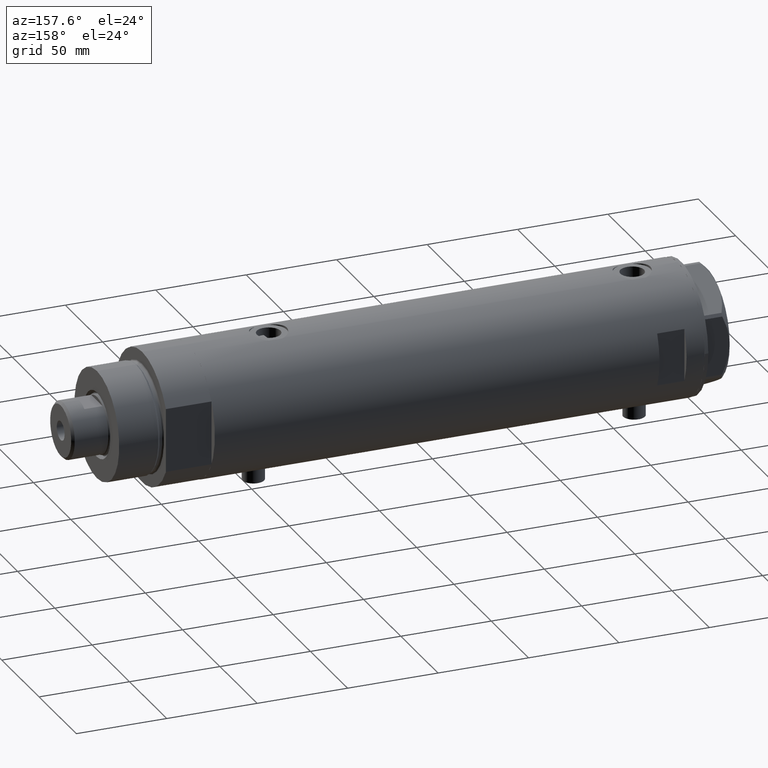
[diagram: clean part render]
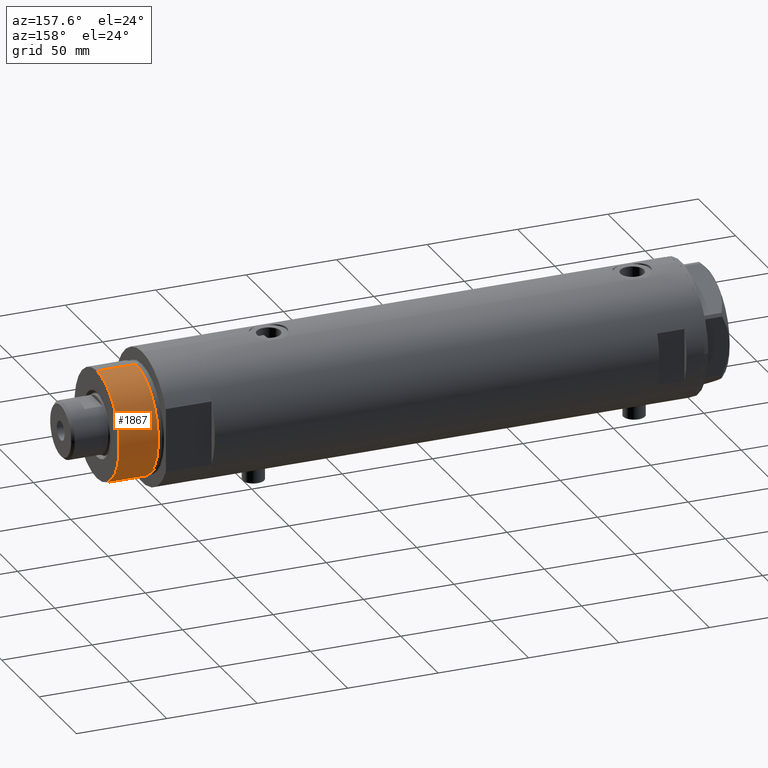
[diagram: same view with one face highlighted and labeled with its STEP entity id]
A machine part, auxiliary view. The second image highlights one B-rep face of the part: STEP entity #1867.
In plain terms, the highlighted cylindrical surface (partial cylindrical patch) has radius 30 mm, axis along (-1, -0, 0).
Its self-contained STEP definition (entity closure, byte-faithful):
#71 = DIRECTION ( 'NONE',  ( 1.000000000000000000, 0.000000000000000000, 0.000000000000000000 ) ) ;
#85 = VECTOR ( 'NONE', #1343, 1000.000000000000000 ) ;
#87 = VERTEX_POINT ( 'NONE', #4328 ) ;
#114 = CARTESIAN_POINT ( 'NONE',  ( -30.00000000000000000, 0.000000000000000000, 50.19999999999999574 ) ) ;
#367 = DIRECTION ( 'NONE',  ( -1.000000000000000000, 0.000000000000000000, 0.000000000000000000 ) ) ;
#392 = DIRECTION ( 'NONE',  ( 0.000000000000000000, 0.000000000000000000, 1.000000000000000000 ) ) ;
#399 = FACE_OUTER_BOUND ( 'NONE', #1698, .T. ) ;
#590 = AXIS2_PLACEMENT_3D ( 'NONE', #3412, #3324, #1202 ) ;
#619 = ORIENTED_EDGE ( 'NONE', *, *, #1191, .F. ) ;
#948 = AXIS2_PLACEMENT_3D ( 'NONE', #3949, #392, #71 ) ;
#986 = ORIENTED_EDGE ( 'NONE', *, *, #2713, .T. ) ;
#1032 = CARTESIAN_POINT ( 'NONE',  ( -30.00000000000000000, 0.000000000000000000, 50.19999999999999574 ) ) ;
#1033 = ORIENTED_EDGE ( 'NONE', *, *, #3898, .F. ) ;
#1191 = EDGE_CURVE ( 'NONE', #1997, #1330, #3225, .T. ) ;
#1202 = DIRECTION ( 'NONE',  ( 1.000000000000000000, 0.000000000000000000, 0.000000000000000000 ) ) ;
#1212 = AXIS2_PLACEMENT_3D ( 'NONE', #4199, #3586, #367 ) ;
#1245 = CARTESIAN_POINT ( 'NONE',  ( -30.00000000000000000, 0.000000000000000000, 28.57384048104054486 ) ) ;
#1330 = VERTEX_POINT ( 'NONE', #1245 ) ;
#1343 = DIRECTION ( 'NONE',  ( -0.000000000000000000, -0.000000000000000000, -1.000000000000000000 ) ) ;
#1352 = VECTOR ( 'NONE', #2156, 1000.000000000000000 ) ;
#1698 = EDGE_LOOP ( 'NONE', ( #1033, #2133, #986, #619 ) ) ;
#1867 = ADVANCED_FACE ( 'NONE', ( #399 ), #3561, .T. ) ;
#1963 = CIRCLE ( 'NONE', #948, 30.00000000000000000 ) ;
#1997 = VERTEX_POINT ( 'NONE', #1032 ) ;
#2133 = ORIENTED_EDGE ( 'NONE', *, *, #2263, .T. ) ;
#2156 = DIRECTION ( 'NONE',  ( -0.000000000000000000, -0.000000000000000000, -1.000000000000000000 ) ) ;
#2263 = EDGE_CURVE ( 'NONE', #87, #2377, #2717, .T. ) ;
#2377 = VERTEX_POINT ( 'NONE', #3977 ) ;
#2554 = CIRCLE ( 'NONE', #590, 30.00000000000000000 ) ;
#2669 = CARTESIAN_POINT ( 'NONE',  ( 30.00000000000000000, 3.673940397442058389E-15, 50.19999999999999574 ) ) ;
#2713 = EDGE_CURVE ( 'NONE', #2377, #1330, #2554, .T. ) ;
#2717 = LINE ( 'NONE', #2669, #85 ) ;
#3225 = LINE ( 'NONE', #114, #1352 ) ;
#3324 = DIRECTION ( 'NONE',  ( -0.000000000000000000, -0.000000000000000000, 1.000000000000000000 ) ) ;
#3412 = CARTESIAN_POINT ( 'NONE',  ( 0.000000000000000000, 0.000000000000000000, 28.57384048104054486 ) ) ;
#3561 = CYLINDRICAL_SURFACE ( 'NONE', #1212, 30.00000000000000000 ) ;
#3586 = DIRECTION ( 'NONE',  ( -0.000000000000000000, -0.000000000000000000, -1.000000000000000000 ) ) ;
#3898 = EDGE_CURVE ( 'NONE', #87, #1997, #1963, .T. ) ;
#3949 = CARTESIAN_POINT ( 'NONE',  ( 0.000000000000000000, 0.000000000000000000, 50.19999999999999574 ) ) ;
#3977 = CARTESIAN_POINT ( 'NONE',  ( 30.00000000000000000, 3.673940397442058389E-15, 28.57384048104054486 ) ) ;
#4199 = CARTESIAN_POINT ( 'NONE',  ( 0.000000000000000000, 0.000000000000000000, 50.19999999999999574 ) ) ;
#4328 = CARTESIAN_POINT ( 'NONE',  ( 30.00000000000000000, 3.673940397442058389E-15, 50.19999999999999574 ) ) ;